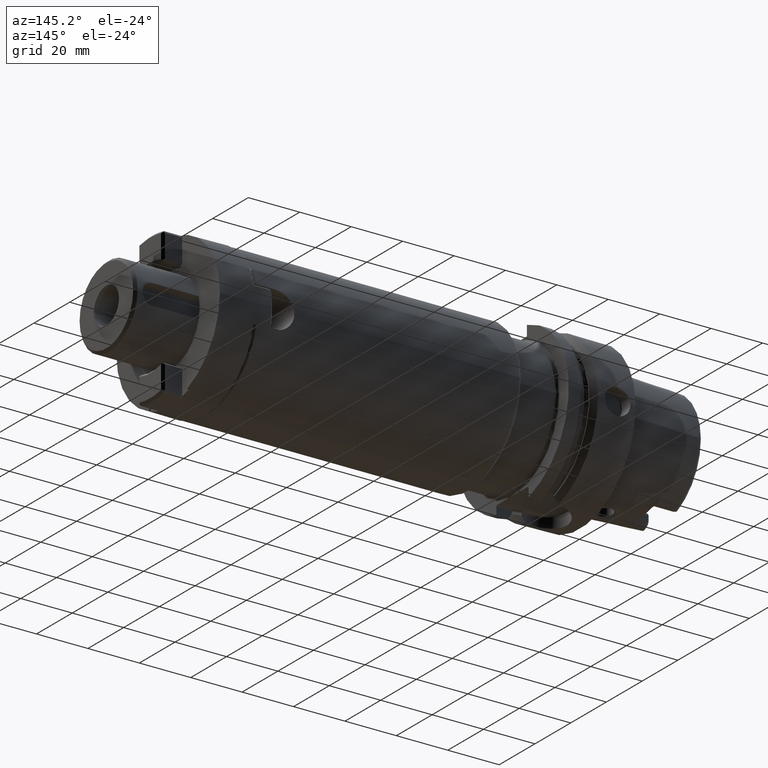
[diagram: clean part render]
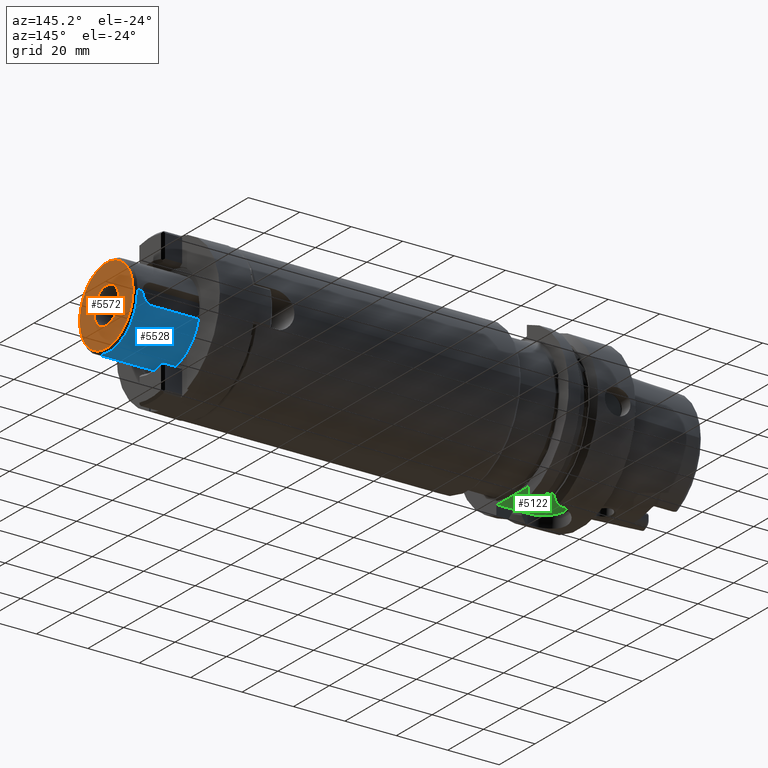
[diagram: same view with three faces highlighted in distinct colors, each labeled with its STEP entity id]
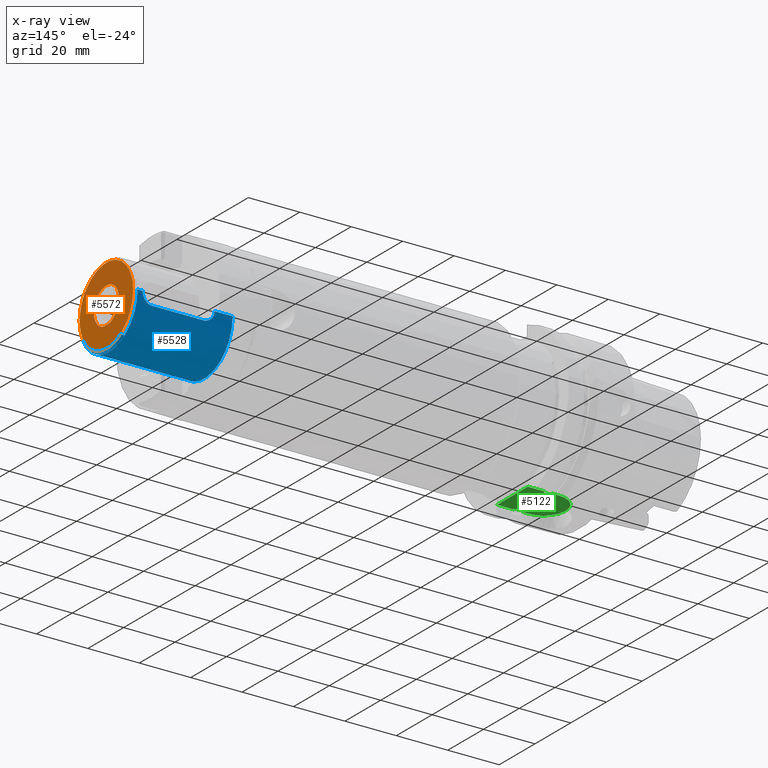
[diagram: x-ray of the same camera — body ghosted, the three highlighted faces saturated]
A machine part, auxiliary view with three faces highlighted in distinct colors.
The next image is the same camera in x-ray (body ghosted, the three faces saturated) — at least one of them is partly hidden behind the body in this view.
Their STEP definitions:

[orange] entity #5572 — the highlighted planar face has unit normal (1, 0, 0).
#1863=CARTESIAN_POINT('',(1.84E2,0.E0,0.E0));
#1864=DIRECTION('',(-1.E0,0.E0,0.E0));
#1865=DIRECTION('',(0.E0,1.E0,0.E0));
#1866=AXIS2_PLACEMENT_3D('',#1863,#1864,#1865);
#1868=CARTESIAN_POINT('',(1.84E2,0.E0,0.E0));
#1869=DIRECTION('',(-1.E0,0.E0,0.E0));
#1870=DIRECTION('',(0.E0,-1.E0,0.E0));
#1871=AXIS2_PLACEMENT_3D('',#1868,#1869,#1870);
#1873=CARTESIAN_POINT('',(1.84E2,0.E0,0.E0));
#1874=DIRECTION('',(1.E0,0.E0,0.E0));
#1875=DIRECTION('',(0.E0,-1.E0,0.E0));
#1876=AXIS2_PLACEMENT_3D('',#1873,#1874,#1875);
#1878=CARTESIAN_POINT('',(1.84E2,0.E0,0.E0));
#1879=DIRECTION('',(1.E0,0.E0,0.E0));
#1880=DIRECTION('',(0.E0,1.E0,0.E0));
#1881=AXIS2_PLACEMENT_3D('',#1878,#1879,#1880);
#3495=CARTESIAN_POINT('',(1.84E2,1.5E1,0.E0));
#3496=CARTESIAN_POINT('',(1.84E2,-1.5E1,0.E0));
#3497=VERTEX_POINT('',#3495);
#3498=VERTEX_POINT('',#3496);
#3505=CARTESIAN_POINT('',(1.84E2,-7.E0,0.E0));
#3506=CARTESIAN_POINT('',(1.84E2,7.E0,0.E0));
#3507=VERTEX_POINT('',#3505);
#3508=VERTEX_POINT('',#3506);
#5557=CARTESIAN_POINT('',(1.84E2,0.E0,0.E0));
#5558=DIRECTION('',(1.E0,0.E0,0.E0));
#5559=DIRECTION('',(0.E0,-1.E0,0.E0));
#5560=AXIS2_PLACEMENT_3D('',#5557,#5558,#5559);
#5561=PLANE('',#5560);
#5562=ORIENTED_EDGE('',*,*,#5537,.T.);
#5563=ORIENTED_EDGE('',*,*,#5551,.T.);
#5564=EDGE_LOOP('',(#5562,#5563));
#5565=FACE_OUTER_BOUND('',#5564,.F.);
#5567=ORIENTED_EDGE('',*,*,#5566,.T.);
#5569=ORIENTED_EDGE('',*,*,#5568,.T.);
#5570=EDGE_LOOP('',(#5567,#5569));
#5571=FACE_BOUND('',#5570,.F.);
#5572=ADVANCED_FACE('',(#5565,#5571),#5561,.T.);
#1867=CIRCLE('',#1866,1.5E1);
#1872=CIRCLE('',#1871,1.5E1);
#1877=CIRCLE('',#1876,7.E0);
#1882=CIRCLE('',#1881,7.E0);
#5537=EDGE_CURVE('',#3497,#3498,#1867,.T.);
#5551=EDGE_CURVE('',#3498,#3497,#1872,.T.);
#5566=EDGE_CURVE('',#3507,#3508,#1877,.T.);
#5568=EDGE_CURVE('',#3508,#3507,#1882,.T.);

[blue] entity #5528 — the highlighted cylindrical surface (partial cylindrical patch) has radius 16 mm, axis along (1, 0, 0).
#1726=CARTESIAN_POINT('',(1.46E2,0.E0,0.E0));
#1727=DIRECTION('',(-1.E0,0.E0,0.E0));
#1728=DIRECTION('',(0.E0,1.E0,0.E0));
#1729=AXIS2_PLACEMENT_3D('',#1726,#1727,#1728);
#1770=CARTESIAN_POINT('',(1.53E2,1.6E1,-1.898904050067E-14));
#1776=CARTESIAN_POINT('',(1.81E2,1.6E1,0.E0));
#1801=CARTESIAN_POINT('',(1.53E2,1.6E1,-1.898904050067E-14));
#1802=CARTESIAN_POINT('',(1.53E2,1.6E1,-1.715549136777E-1));
#1803=CARTESIAN_POINT('',(1.530217832310E2,1.599453219594E1,
-5.138874839253E-1));
#1804=CARTESIAN_POINT('',(1.531231405563E2,1.596948605568E1,-1.031224597630E0));
#1805=CARTESIAN_POINT('',(1.532924605394E2,1.592900711956E1,-1.531769357844E0));
#1806=CARTESIAN_POINT('',(1.535237635758E2,1.587649018121E1,-2.001569958372E0));
#1807=CARTESIAN_POINT('',(1.538132394719E2,1.581527426072E1,-2.436564744497E0));
#1808=CARTESIAN_POINT('',(1.541628250974E2,1.574813817918E1,-2.836378779240E0));
#1809=CARTESIAN_POINT('',(1.545626235186E2,1.568067593653E1,-3.186208711006E0));
#1810=CARTESIAN_POINT('',(1.549990777350E2,1.561846758437E1,-3.476641345139E0));
#1811=CARTESIAN_POINT('',(1.554683734415E2,1.556495733178E1,-3.707577921921E0));
#1812=CARTESIAN_POINT('',(1.559693925168E2,1.552336058478E1,-3.877058708715E0));
#1813=CARTESIAN_POINT('',(1.564870273999E2,1.549755691704E1,-3.978319091298E0));
#1814=CARTESIAN_POINT('',(1.568287658093E2,1.549193338483E1,-4.E0));
#1815=CARTESIAN_POINT('',(1.57E2,1.549193338483E1,-4.E0));
#1817=DIRECTION('',(-1.E0,0.E0,0.E0));
#1818=VECTOR('',#1817,7.E0);
#1819=CARTESIAN_POINT('',(1.53E2,1.6E1,-1.898904050067E-14));
#1820=LINE('',#1819,#1818);
#1821=DIRECTION('',(-1.E0,-3.567116572093E-14,-3.838914681431E-13));
#1822=VECTOR('',#1821,3.7E1);
#1823=CARTESIAN_POINT('',(1.83E2,-1.6E1,1.420267803138E-11));
#1824=LINE('',#1823,#1822);
#1825=CARTESIAN_POINT('',(1.83E2,0.E0,0.E0));
#1826=DIRECTION('',(-1.E0,0.E0,0.E0));
#1827=DIRECTION('',(0.E0,1.E0,0.E0));
#1828=AXIS2_PLACEMENT_3D('',#1825,#1826,#1827);
#1830=DIRECTION('',(-1.E0,6.608047442565E-13,7.098983604948E-12));
#1831=VECTOR('',#1830,2.000000000001E0);
#1832=CARTESIAN_POINT('',(1.83E2,1.6E1,-1.420227971168E-11));
#1833=LINE('',#1832,#1831);
#1834=CARTESIAN_POINT('',(1.77E2,1.549193338483E1,-4.E0));
#1835=CARTESIAN_POINT('',(1.771601628629E2,1.549193338483E1,-4.E0));
#1836=CARTESIAN_POINT('',(1.774776405250E2,1.549687104326E1,-3.980951568272E0));
#1837=CARTESIAN_POINT('',(1.779492337138E2,1.551867793736E1,-3.895505424592E0));
#1838=CARTESIAN_POINT('',(1.784044421076E2,1.555333997035E1,-3.755447785723E0));
#1839=CARTESIAN_POINT('',(1.788416329183E2,1.559912066333E1,-3.561467997953E0));
#1840=CARTESIAN_POINT('',(1.792511951514E2,1.565299895760E1,-3.317962387363E0));
#1841=CARTESIAN_POINT('',(1.796354398157E2,1.571311025036E1,-3.022150982053E0));
#1842=CARTESIAN_POINT('',(1.799826083317E2,1.577535543402E1,-2.680213941104E0));
#1843=CARTESIAN_POINT('',(1.802859176436E2,1.583580575340E1,-2.297989660743E0));
#1844=CARTESIAN_POINT('',(1.805381381884E2,1.589031218721E1,-1.886849922656E0));
#1845=CARTESIAN_POINT('',(1.807428548894E2,1.593734926104E1,-1.439621020722E0));
#1846=CARTESIAN_POINT('',(1.808918154122E2,1.597316395717E1,
-9.673589896043E-1));
#1847=CARTESIAN_POINT('',(1.809809390848E2,1.599521743559E1,
-4.811699571895E-1));
#1848=CARTESIAN_POINT('',(1.81E2,1.6E1,-1.604610069937E-1));
#1849=CARTESIAN_POINT('',(1.81E2,1.6E1,0.E0));
#1851=DIRECTION('',(1.E0,0.E0,0.E0));
#1852=VECTOR('',#1851,2.E1);
#1853=CARTESIAN_POINT('',(1.57E2,1.549193338483E1,-4.E0));
#1854=LINE('',#1853,#1852);
#3487=CARTESIAN_POINT('',(1.46E2,1.6E1,0.E0));
#3488=CARTESIAN_POINT('',(1.46E2,-1.6E1,0.E0));
#3489=VERTEX_POINT('',#3487);
#3490=VERTEX_POINT('',#3488);
#3491=CARTESIAN_POINT('',(1.83E2,1.6E1,0.E0));
#3492=CARTESIAN_POINT('',(1.83E2,-1.6E1,0.E0));
#3493=VERTEX_POINT('',#3491);
#3494=VERTEX_POINT('',#3492);
#3558=VERTEX_POINT('',#1770);
#3561=VERTEX_POINT('',#1776);
#3562=VERTEX_POINT('',#1815);
#3563=VERTEX_POINT('',#1834);
#5510=CARTESIAN_POINT('',(1.81E1,0.E0,0.E0));
#5511=DIRECTION('',(1.E0,0.E0,0.E0));
#5512=DIRECTION('',(0.E0,-1.E0,0.E0));
#5513=AXIS2_PLACEMENT_3D('',#5510,#5511,#5512);
#5514=CYLINDRICAL_SURFACE('',#5513,1.6E1);
#5515=ORIENTED_EDGE('',*,*,#5499,.F.);
#5516=ORIENTED_EDGE('',*,*,#5488,.T.);
#5517=ORIENTED_EDGE('',*,*,#5465,.T.);
#5518=ORIENTED_EDGE('',*,*,#5485,.F.);
#5520=ORIENTED_EDGE('',*,*,#5519,.F.);
#5521=ORIENTED_EDGE('',*,*,#5481,.T.);
#5523=ORIENTED_EDGE('',*,*,#5522,.F.);
#5525=ORIENTED_EDGE('',*,*,#5524,.F.);
#5526=EDGE_LOOP('',(#5515,#5516,#5517,#5518,#5520,#5521,#5523,#5525));
#5527=FACE_OUTER_BOUND('',#5526,.F.);
#5528=ADVANCED_FACE('',(#5527),#5514,.T.);
#1730=CIRCLE('',#1729,1.6E1);
#1816=B_SPLINE_CURVE_WITH_KNOTS('',3,(#1801,#1802,#1803,#1804,#1805,#1806,#1807,
#1808,#1809,#1810,#1811,#1812,#1813,#1814,#1815),.UNSPECIFIED.,.F.,.F.,(4,1,1,1,
1,1,1,1,1,1,1,1,4),(0.E0,8.333333333333E-2,1.666666666667E-1,2.5E-1,
3.333333333333E-1,4.166666666667E-1,5.E-1,5.833333333333E-1,6.666666666667E-1,
7.5E-1,8.333333333333E-1,9.166666666667E-1,1.E0),.UNSPECIFIED.);
#1829=CIRCLE('',#1828,1.6E1);
#1850=B_SPLINE_CURVE_WITH_KNOTS('',3,(#1834,#1835,#1836,#1837,#1838,#1839,#1840,
#1841,#1842,#1843,#1844,#1845,#1846,#1847,#1848,#1849),.UNSPECIFIED.,.F.,.F.,(4,
1,1,1,1,1,1,1,1,1,1,1,1,4),(0.E0,7.692307692308E-2,1.538461538462E-1,
2.307692307692E-1,3.076923076923E-1,3.846153846154E-1,4.615384615385E-1,
5.384615384615E-1,6.153846153846E-1,6.923076923077E-1,7.692307692308E-1,
8.461538461538E-1,9.230769230769E-1,1.E0),.UNSPECIFIED.);
#5465=EDGE_CURVE('',#3489,#3490,#1730,.T.);
#5481=EDGE_CURVE('',#3493,#3561,#1833,.T.);
#5485=EDGE_CURVE('',#3494,#3490,#1824,.T.);
#5488=EDGE_CURVE('',#3558,#3489,#1820,.T.);
#5499=EDGE_CURVE('',#3558,#3562,#1816,.T.);
#5519=EDGE_CURVE('',#3493,#3494,#1829,.T.);
#5522=EDGE_CURVE('',#3563,#3561,#1850,.T.);
#5524=EDGE_CURVE('',#3562,#3563,#1854,.T.);

[green] entity #5122 — the highlighted planar face has unit normal (0, 0, -1).
#1222=CARTESIAN_POINT('',(1.7125E1,7.7E0,-2.64E1));
#1223=CARTESIAN_POINT('',(1.709612257646E1,7.7E0,-2.64E1));
#1224=CARTESIAN_POINT('',(1.703809054195E1,7.708549788548E0,-2.64E1));
#1225=CARTESIAN_POINT('',(1.694576354836E1,7.752741855764E0,-2.64E1));
#1226=CARTESIAN_POINT('',(1.686145167985E1,7.821144618954E0,-2.64E1));
#1227=CARTESIAN_POINT('',(1.678169591401E1,7.910255407197E0,-2.64E1));
#1228=CARTESIAN_POINT('',(1.670585865658E1,8.018731508895E0,-2.64E1));
#1229=CARTESIAN_POINT('',(1.663386002384E1,8.144595739092E0,-2.64E1));
#1230=CARTESIAN_POINT('',(1.656565613315E1,8.286316729889E0,-2.64E1));
#1231=CARTESIAN_POINT('',(1.650080228847E1,8.443935370899E0,-2.64E1));
#1232=CARTESIAN_POINT('',(1.646027482334E1,8.558057187343E0,-2.64E1));
#1233=CARTESIAN_POINT('',(1.644062313526E1,8.6175E0,-2.64E1));
#1296=CARTESIAN_POINT('',(1.644062313526E1,-8.6175E0,-2.64E1));
#1297=CARTESIAN_POINT('',(1.646078603879E1,-8.556510852770E0,-2.64E1));
#1298=CARTESIAN_POINT('',(1.650227386064E1,-8.439948273349E0,-2.64E1));
#1299=CARTESIAN_POINT('',(1.656805348335E1,-8.280864278287E0,-2.64E1));
#1300=CARTESIAN_POINT('',(1.663684500818E1,-8.138886080904E0,-2.64E1));
#1301=CARTESIAN_POINT('',(1.670898389576E1,-8.013810014671E0,-2.64E1));
#1302=CARTESIAN_POINT('',(1.678453793855E1,-7.906721865662E0,-2.64E1));
#1303=CARTESIAN_POINT('',(1.686362062870E1,-7.819127635624E0,-2.64E1));
#1304=CARTESIAN_POINT('',(1.694730615110E1,-7.751879650101E0,-2.64E1));
#1305=CARTESIAN_POINT('',(1.703817130297E1,-7.708637437381E0,-2.64E1));
#1306=CARTESIAN_POINT('',(1.709608612766E1,-7.7E0,-2.64E1));
#1307=CARTESIAN_POINT('',(1.7125E1,-7.7E0,-2.64E1));
#1336=CARTESIAN_POINT('',(1.644062313526E1,8.6175E0,-2.64E1));
#1352=CARTESIAN_POINT('',(1.644062313526E1,-8.6175E0,-2.64E1));
#1358=DIRECTION('',(0.E0,-9.999999999999E-1,-5.089019152376E-7));
#1359=VECTOR('',#1358,6.317478043860E0);
#1360=CARTESIAN_POINT('',(2.6E1,-2.300021956141E0,-2.639999678502E1));
#1361=LINE('',#1360,#1359);
#1362=DIRECTION('',(0.E0,-9.999999999999E-1,5.013148187255E-7));
#1363=VECTOR('',#1362,6.317478305725E0);
#1364=CARTESIAN_POINT('',(2.6E1,8.6175E0,-2.64E1));
#1365=LINE('',#1364,#1363);
#1366=DIRECTION('',(1.E0,0.E0,0.E0));
#1367=VECTOR('',#1366,6.440623135263E0);
#1368=CARTESIAN_POINT('',(1.955937686474E1,8.6175E0,-2.64E1));
#1369=LINE('',#1368,#1367);
#1370=DIRECTION('',(-9.999999999999E-1,-2.676307863714E-7,-2.675980536163E-7));
#1371=VECTOR('',#1370,2.473123130251E0);
#1372=CARTESIAN_POINT('',(1.644062313526E1,8.6175E0,-2.64E1));
#1373=LINE('',#1372,#1371);
#1374=CARTESIAN_POINT('',(1.39675E1,-2.131628207280E-14,-2.640000139113E1));
#1375=DIRECTION('',(0.E0,0.E0,1.E0));
#1376=DIRECTION('',(-1.030668622693E-14,1.E0,0.E0));
#1377=AXIS2_PLACEMENT_3D('',#1374,#1375,#1376);
#1379=DIRECTION('',(9.999999999999E-1,-2.676237429886E-7,2.676050896565E-7));
#1380=VECTOR('',#1379,2.473123130989E0);
#1381=CARTESIAN_POINT('',(1.396750000427E1,-8.617499338134E0,
-2.640000066182E1));
#1382=LINE('',#1381,#1380);
#1383=DIRECTION('',(-1.E0,0.E0,0.E0));
#1384=VECTOR('',#1383,6.440623135263E0);
#1385=CARTESIAN_POINT('',(2.6E1,-8.6175E0,-2.64E1));
#1386=LINE('',#1385,#1384);
#1431=CARTESIAN_POINT('',(2.6E1,2.300021694276E0,-2.639999683295E1));
#1432=CARTESIAN_POINT('',(2.6E1,1.787748654275E0,-2.639999683295E1));
#1433=CARTESIAN_POINT('',(2.600528050722E1,7.640154398575E-1,
-2.640000104929E1));
#1434=CARTESIAN_POINT('',(2.600528050729E1,-7.640153408132E-1,
-2.640000107805E1));
#1435=CARTESIAN_POINT('',(2.6E1,-1.787748911102E0,-2.639999678502E1));
#1436=CARTESIAN_POINT('',(2.6E1,-2.300021956141E0,-2.639999678502E1));
#2301=CARTESIAN_POINT('',(1.955937686474E1,8.6175E0,-2.64E1));
#2302=CARTESIAN_POINT('',(1.953933692943E1,8.556882809475E0,-2.64E1));
#2303=CARTESIAN_POINT('',(1.949803643853E1,8.440751828791E0,-2.64E1));
#2304=CARTESIAN_POINT('',(1.943198239289E1,8.280902876688E0,-2.64E1));
#2305=CARTESIAN_POINT('',(1.936289962713E1,8.138372043109E0,-2.64E1));
#2306=CARTESIAN_POINT('',(1.929044179409E1,8.012872381152E0,-2.64E1));
#2307=CARTESIAN_POINT('',(1.921473346325E1,7.905832703978E0,-2.64E1));
#2308=CARTESIAN_POINT('',(1.913579091836E1,7.818493807110E0,-2.64E1));
#2309=CARTESIAN_POINT('',(1.905155273254E1,7.751296731883E0,-2.64E1));
#2310=CARTESIAN_POINT('',(1.896325315553E1,7.709235333598E0,-2.64E1));
#2311=CARTESIAN_POINT('',(1.890455004185E1,7.7E0,-2.64E1));
#2312=CARTESIAN_POINT('',(1.8875E1,7.7E0,-2.64E1));
#2372=CARTESIAN_POINT('',(1.8875E1,-7.7E0,-2.64E1));
#2373=CARTESIAN_POINT('',(1.890473731311E1,-7.7E0,-2.64E1));
#2374=CARTESIAN_POINT('',(1.896439553552E1,-7.709074097953E0,-2.64E1));
#2375=CARTESIAN_POINT('',(1.905895356645E1,-7.755593365771E0,-2.64E1));
#2376=CARTESIAN_POINT('',(1.914506350406E1,-7.827325160610E0,-2.64E1));
#2377=CARTESIAN_POINT('',(1.922569730521E1,-7.919730067314E0,-2.64E1));
#2378=CARTESIAN_POINT('',(1.930098420168E1,-8.029803274102E0,-2.64E1));
#2379=CARTESIAN_POINT('',(1.937115269578E1,-8.154449512708E0,-2.64E1));
#2380=CARTESIAN_POINT('',(1.943699388158E1,-8.292566470765E0,-2.64E1));
#2381=CARTESIAN_POINT('',(1.949974575456E1,-8.445548604297E0,-2.64E1));
#2382=CARTESIAN_POINT('',(1.953984256144E1,-8.558412255131E0,-2.64E1));
#2383=CARTESIAN_POINT('',(1.955937686474E1,-8.6175E0,-2.64E1));
#2424=CARTESIAN_POINT('',(1.955937686474E1,8.6175E0,-2.64E1));
#2426=DIRECTION('',(1.E0,0.E0,0.E0));
#2427=VECTOR('',#2426,1.75E0);
#2428=CARTESIAN_POINT('',(1.7125E1,-7.7E0,-2.64E1));
#2429=LINE('',#2428,#2427);
#2439=DIRECTION('',(1.E0,0.E0,0.E0));
#2440=VECTOR('',#2439,1.75E0);
#2441=CARTESIAN_POINT('',(1.7125E1,7.7E0,-2.64E1));
#2442=LINE('',#2441,#2440);
#2508=CARTESIAN_POINT('',(1.955937686474E1,-8.6175E0,-2.64E1));
#3362=VERTEX_POINT('',#1336);
#3365=VERTEX_POINT('',#1352);
#3367=VERTEX_POINT('',#2424);
#3368=CARTESIAN_POINT('',(1.396750000427E1,-8.617499338134E0,
-2.640000066182E1));
#3369=VERTEX_POINT('',#3368);
#3374=CARTESIAN_POINT('',(1.396750000501E1,8.617499338116E0,-2.640000066180E1));
#3375=VERTEX_POINT('',#3374);
#3376=VERTEX_POINT('',#2508);
#3434=CARTESIAN_POINT('',(1.7125E1,-7.7E0,-2.64E1));
#3435=CARTESIAN_POINT('',(1.8875E1,-7.7E0,-2.64E1));
#3436=VERTEX_POINT('',#3434);
#3437=VERTEX_POINT('',#3435);
#3438=CARTESIAN_POINT('',(1.7125E1,7.7E0,-2.64E1));
#3439=CARTESIAN_POINT('',(1.8875E1,7.7E0,-2.64E1));
#3440=VERTEX_POINT('',#3438);
#3441=VERTEX_POINT('',#3439);
#3564=CARTESIAN_POINT('',(2.6E1,-8.6175E0,-2.64E1));
#3566=VERTEX_POINT('',#3564);
#3568=CARTESIAN_POINT('',(2.6E1,8.6175E0,-2.64E1));
#3570=VERTEX_POINT('',#3568);
#3585=CARTESIAN_POINT('',(2.6E1,2.299956360132E0,-2.640000380192E1));
#3587=VERTEX_POINT('',#3585);
#3598=CARTESIAN_POINT('',(2.6E1,-2.300021956141E0,-2.639999678502E1));
#3599=VERTEX_POINT('',#3598);
#5092=CARTESIAN_POINT('',(0.E0,0.E0,-2.64E1));
#5093=DIRECTION('',(0.E0,0.E0,-1.E0));
#5094=DIRECTION('',(1.E0,0.E0,0.E0));
#5095=AXIS2_PLACEMENT_3D('',#5092,#5093,#5094);
#5096=PLANE('',#5095);
#5098=ORIENTED_EDGE('',*,*,#5097,.F.);
#5100=ORIENTED_EDGE('',*,*,#5099,.F.);
#5102=ORIENTED_EDGE('',*,*,#5101,.F.);
#5104=ORIENTED_EDGE('',*,*,#5103,.F.);
#5106=ORIENTED_EDGE('',*,*,#5105,.T.);
#5108=ORIENTED_EDGE('',*,*,#5107,.F.);
#5109=ORIENTED_EDGE('',*,*,#4968,.T.);
#5110=ORIENTED_EDGE('',*,*,#5058,.T.);
#5111=ORIENTED_EDGE('',*,*,#5070,.T.);
#5112=ORIENTED_EDGE('',*,*,#5084,.T.);
#5113=ORIENTED_EDGE('',*,*,#4999,.T.);
#5115=ORIENTED_EDGE('',*,*,#5114,.T.);
#5117=ORIENTED_EDGE('',*,*,#5116,.T.);
#5119=ORIENTED_EDGE('',*,*,#5118,.F.);
#5120=EDGE_LOOP('',(#5098,#5100,#5102,#5104,#5106,#5108,#5109,#5110,#5111,#5112,
#5113,#5115,#5117,#5119));
#5121=FACE_OUTER_BOUND('',#5120,.F.);
#5122=ADVANCED_FACE('',(#5121),#5096,.T.);
#1234=B_SPLINE_CURVE_WITH_KNOTS('',3,(#1222,#1223,#1224,#1225,#1226,#1227,#1228,
#1229,#1230,#1231,#1232,#1233),.UNSPECIFIED.,.F.,.F.,(4,1,1,1,1,1,1,1,1,4),
(0.E0,1.111111111111E-1,2.222222222222E-1,3.333333333333E-1,4.444444444444E-1,
5.555555555556E-1,6.666666666667E-1,7.777777777778E-1,8.888888888889E-1,1.E0),
.UNSPECIFIED.);
#1308=B_SPLINE_CURVE_WITH_KNOTS('',3,(#1296,#1297,#1298,#1299,#1300,#1301,#1302,
#1303,#1304,#1305,#1306,#1307),.UNSPECIFIED.,.F.,.F.,(4,1,1,1,1,1,1,1,1,4),
(0.E0,1.111111111111E-1,2.222222222222E-1,3.333333333333E-1,4.444444444444E-1,
5.555555555556E-1,6.666666666667E-1,7.777777777778E-1,8.888888888889E-1,1.E0),
.UNSPECIFIED.);
#1378=CIRCLE('',#1377,8.617497420067E0);
#1437=B_SPLINE_CURVE_WITH_KNOTS('',3,(#1431,#1432,#1433,#1434,#1435,#1436),
.UNSPECIFIED.,.F.,.F.,(4,1,1,4),(0.E0,3.333333333333E-1,6.666666666667E-1,1.E0),
.UNSPECIFIED.);
#2313=B_SPLINE_CURVE_WITH_KNOTS('',3,(#2301,#2302,#2303,#2304,#2305,#2306,#2307,
#2308,#2309,#2310,#2311,#2312),.UNSPECIFIED.,.F.,.F.,(4,1,1,1,1,1,1,1,1,4),
(0.E0,1.111111111111E-1,2.222222222222E-1,3.333333333333E-1,4.444444444444E-1,
5.555555555556E-1,6.666666666667E-1,7.777777777778E-1,8.888888888889E-1,1.E0),
.UNSPECIFIED.);
#2384=B_SPLINE_CURVE_WITH_KNOTS('',3,(#2372,#2373,#2374,#2375,#2376,#2377,#2378,
#2379,#2380,#2381,#2382,#2383),.UNSPECIFIED.,.F.,.F.,(4,1,1,1,1,1,1,1,1,4),
(0.E0,1.111111111111E-1,2.222222222222E-1,3.333333333333E-1,4.444444444444E-1,
5.555555555556E-1,6.666666666667E-1,7.777777777778E-1,8.888888888889E-1,1.E0),
.UNSPECIFIED.);
#4968=EDGE_CURVE('',#3440,#3362,#1234,.T.);
#4999=EDGE_CURVE('',#3365,#3436,#1308,.T.);
#5058=EDGE_CURVE('',#3362,#3375,#1373,.T.);
#5070=EDGE_CURVE('',#3375,#3369,#1378,.T.);
#5084=EDGE_CURVE('',#3369,#3365,#1382,.T.);
#5097=EDGE_CURVE('',#3599,#3566,#1361,.T.);
#5099=EDGE_CURVE('',#3587,#3599,#1437,.T.);
#5101=EDGE_CURVE('',#3570,#3587,#1365,.T.);
#5103=EDGE_CURVE('',#3367,#3570,#1369,.T.);
#5105=EDGE_CURVE('',#3367,#3441,#2313,.T.);
#5107=EDGE_CURVE('',#3440,#3441,#2442,.T.);
#5114=EDGE_CURVE('',#3436,#3437,#2429,.T.);
#5116=EDGE_CURVE('',#3437,#3376,#2384,.T.);
#5118=EDGE_CURVE('',#3566,#3376,#1386,.T.);